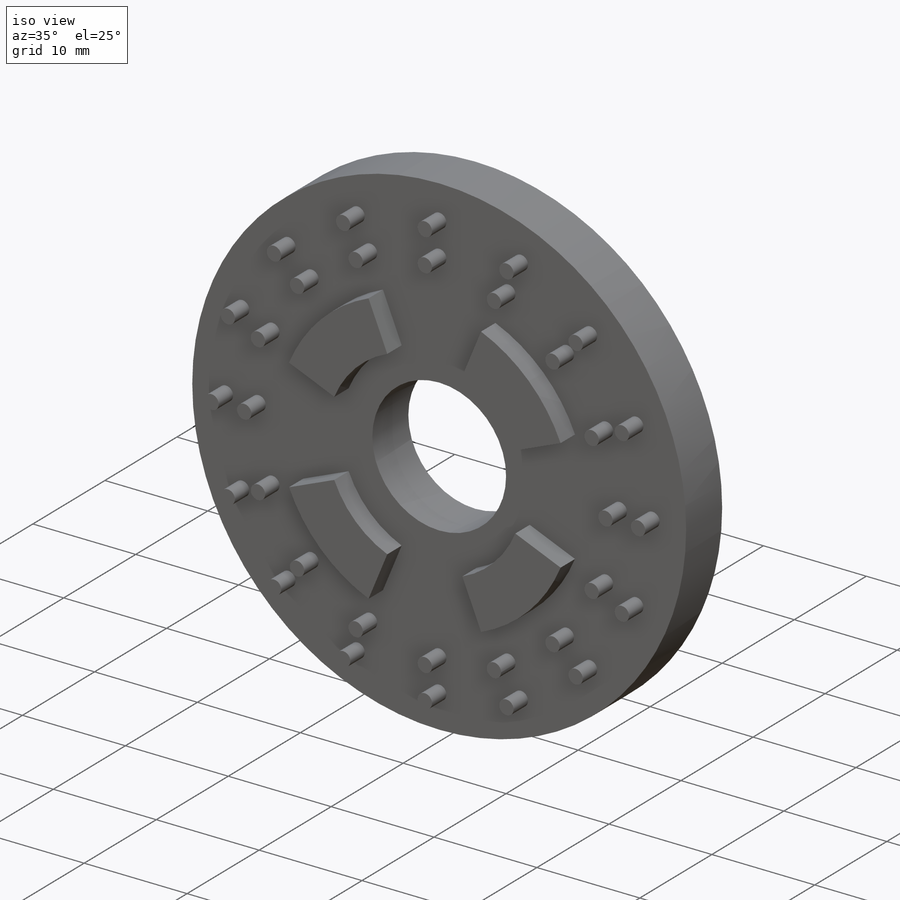
[diagram: iso view]
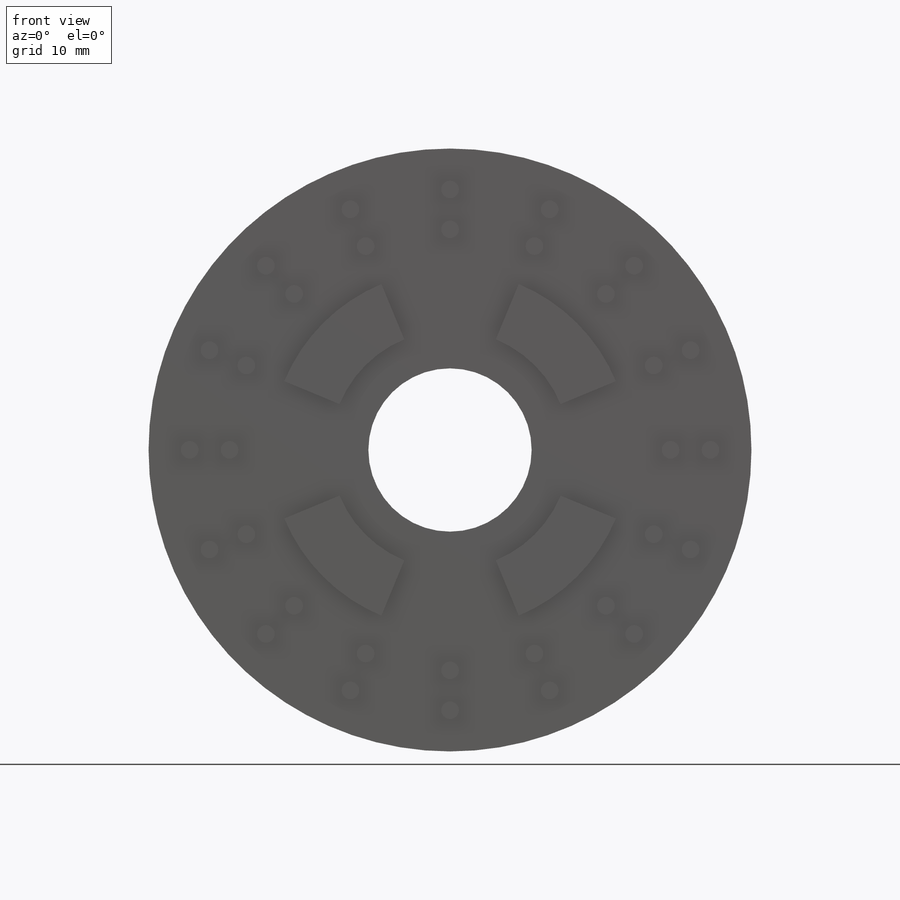
[diagram: front view]
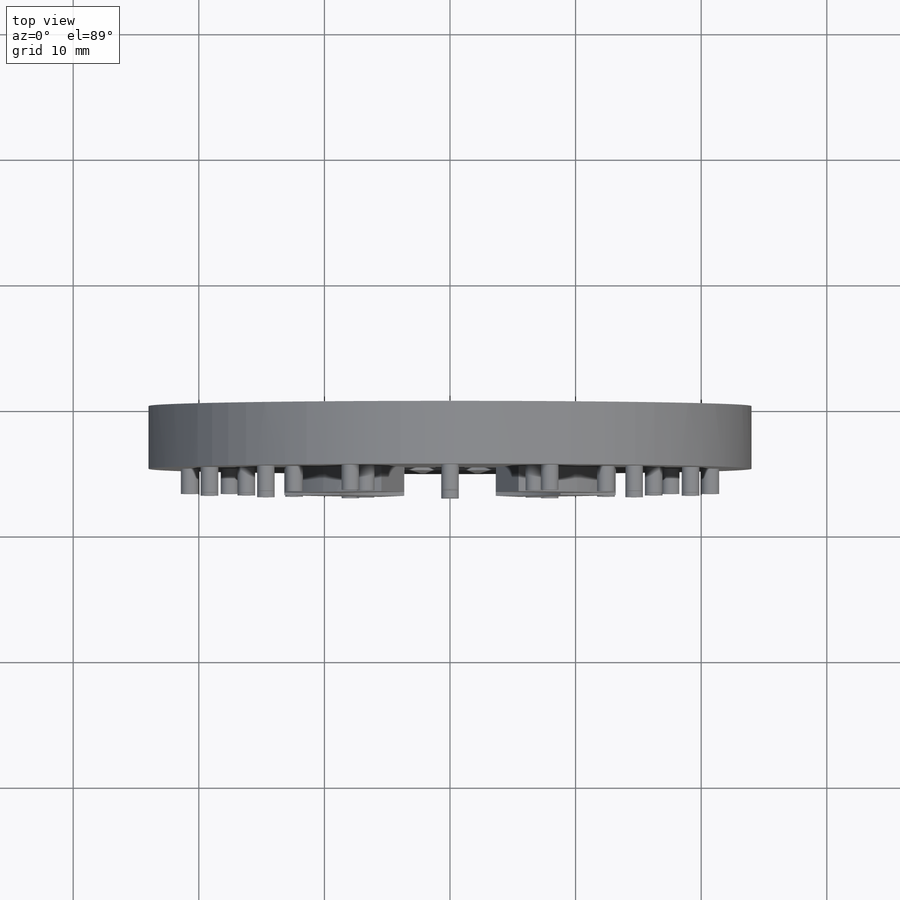
[diagram: top view]
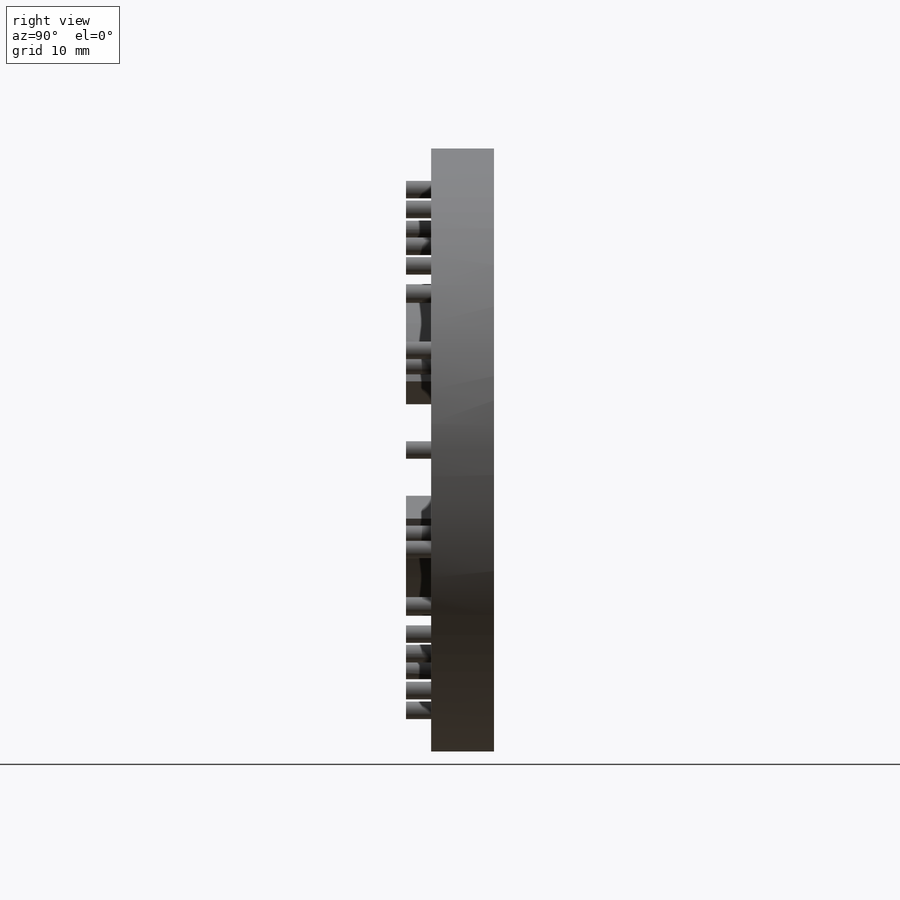
[diagram: right view]
SOLIDWORKS PART (.sldprt)
format: sldprt  version: not decoded by parser v0  size: 273,408 bytes
history: native  units: mm
features: sketch x3, extrude x2, material x1, cut_extrude x1 (+15 scaffold rows collapsed)
feature tree (22):
  scaffold x15  (default folders/planes/origin — collapsed)
  material  "Material <not specified>"
  sketch  "Sketch1"  dims[D1=23.75mm]
  extrude  "Extrude1"  Depth=5mm
  sketch  "Sketch4"  dims[D1=~1.149337mm]
  sketch  "Sketch5"  dims[D1=6.35mm]
  cut_extrude  "Cut-Extrude3"  Depth=10mm
  extrude  "Extrude2"  Depth=2mm
decode coverage: 6 of 6 modeling features carry decoded parameters
note: ~ marks probable driven/reference dimensions
note: suppression state not decoded; provenance and decode notes live in map.json
